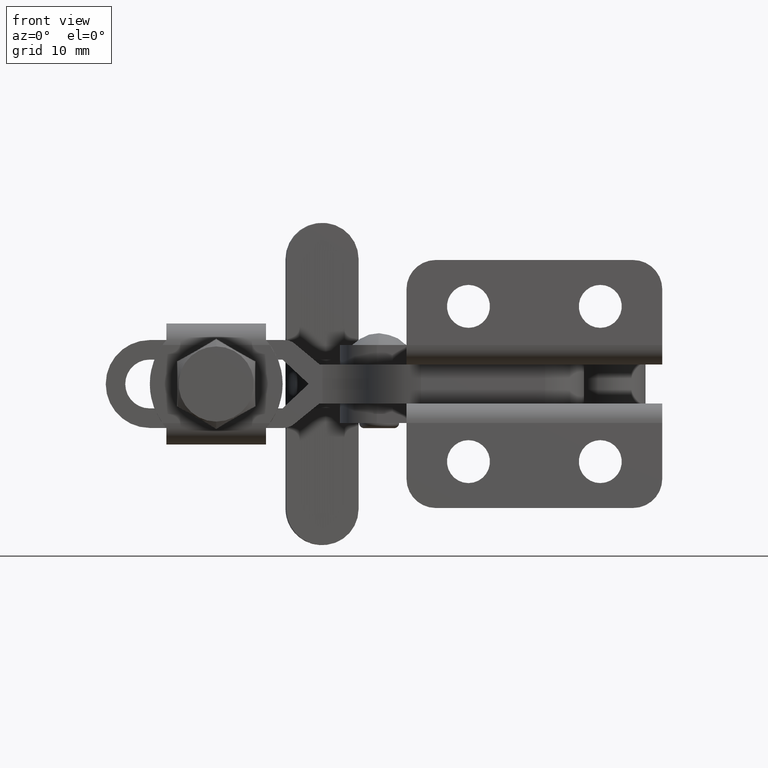
[diagram: clean part render]
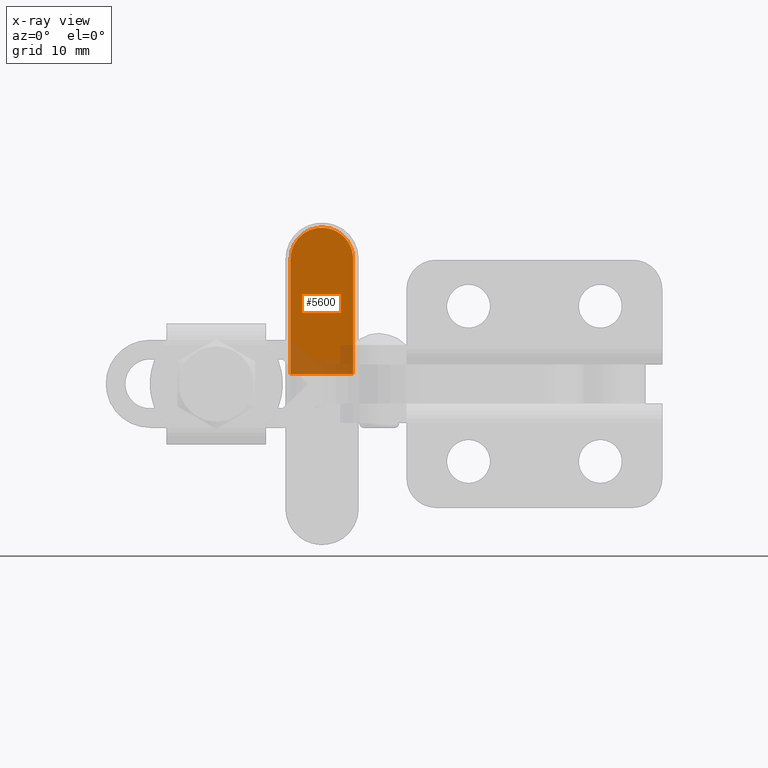
[diagram: x-ray — body ghosted, one internal face saturated and labeled with its STEP entity id]
A machine part, front view, then the same camera in x-ray: the body is ghosted and one INTERNAL B-rep face — a face not visible from any outside direction — is saturated and labeled: STEP entity #5600.
In plain terms, the highlighted planar face has unit normal (0.031, -0.9995, 0).
Its self-contained STEP definition (entity closure, byte-faithful):
#519 = VECTOR ( 'NONE', #6798, 1000.000000000000100 ) ;
#527 = ORIENTED_EDGE ( 'NONE', *, *, #2327, .T. ) ;
#900 = CARTESIAN_POINT ( 'NONE',  ( -35.07920312261271800, 39.48814670968528200, -0.9999999999999991100 ) ) ;
#1233 = VERTEX_POINT ( 'NONE', #2519 ) ;
#1251 = FACE_OUTER_BOUND ( 'NONE', #5979, .T. ) ;
#1564 = ORIENTED_EDGE ( 'NONE', *, *, #3925, .F. ) ;
#2327 = EDGE_CURVE ( 'NONE', #1233, #2427, #7389, .T. ) ;
#2426 = CARTESIAN_POINT ( 'NONE',  ( -28.66063524383564200, 39.68713200857599300, 14.00000000000000000 ) ) ;
#2427 = VERTEX_POINT ( 'NONE', #900 ) ;
#2519 = CARTESIAN_POINT ( 'NONE',  ( -35.07920312261271800, 39.48814670968528200, 10.79917443168819200 ) ) ;
#2630 =( BOUNDED_CURVE ( )  B_SPLINE_CURVE ( 3, ( #3464, #5273, #9317, #8514 ),
 .UNSPECIFIED., .F., .T. ) 
 B_SPLINE_CURVE_WITH_KNOTS ( ( 4, 4 ),
 ( 3.141592653589795300, 6.283185307179582700 ),
 .UNSPECIFIED. ) 
 CURVE ( )  GEOMETRIC_REPRESENTATION_ITEM ( )  RATIONAL_B_SPLINE_CURVE ( ( 1.000000000000000000, 0.3333333333333353100, 0.3333333333333353100, 1.000000000000000000 ) ) 
 REPRESENTATION_ITEM ( '' )  );
#2835 = AXIS2_PLACEMENT_3D ( 'NONE', #8550, #9913, #4844 ) ;
#2926 = LINE ( 'NONE', #2426, #4723 ) ;
#3314 = VECTOR ( 'NONE', #10024, 1000.000000000000000 ) ;
#3426 = EDGE_CURVE ( 'NONE', #4112, #8894, #2926, .T. ) ;
#3464 = CARTESIAN_POINT ( 'NONE',  ( -35.07920312261271800, 39.48814670968528200, 10.79917443168819200 ) ) ;
#3925 = EDGE_CURVE ( 'NONE', #1233, #4112, #2630, .T. ) ;
#4112 = VERTEX_POINT ( 'NONE', #6419 ) ;
#4723 = VECTOR ( 'NONE', #9956, 1000.000000000000000 ) ;
#4844 = DIRECTION ( 'NONE',  ( 0.9995197992869301300, 0.03098662345940447400, 0.0000000000000000000 ) ) ;
#5010 = PLANE ( 'NONE',  #2835 ) ;
#5238 = CARTESIAN_POINT ( 'NONE',  ( -35.07920312261271800, 39.48814670968528200, 0.0000000000000000000 ) ) ;
#5273 = CARTESIAN_POINT ( 'NONE',  ( -35.07920312261283200, 39.48814670968527500, 17.22082556831178100 ) ) ;
#5487 = CARTESIAN_POINT ( 'NONE',  ( -28.67062681112561500, 39.68682225489867200, -0.9999999999999991100 ) ) ;
#5600 = ADVANCED_FACE ( 'NONE', ( #1251 ), #5010, .T. ) ;
#5979 = EDGE_LOOP ( 'NONE', ( #8086, #1564, #527, #9150 ) ) ;
#6419 = CARTESIAN_POINT ( 'NONE',  ( -28.66063524383564200, 39.68713200857599300, 10.79917443168819500 ) ) ;
#6644 = EDGE_CURVE ( 'NONE', #8894, #2427, #6698, .T. ) ;
#6698 = LINE ( 'NONE', #5487, #519 ) ;
#6798 = DIRECTION ( 'NONE',  ( -0.9995197992869301300, -0.03098662345940447400, -0.0000000000000000000 ) ) ;
#7389 = LINE ( 'NONE', #5238, #3314 ) ;
#8086 = ORIENTED_EDGE ( 'NONE', *, *, #3426, .F. ) ;
#8514 = CARTESIAN_POINT ( 'NONE',  ( -28.66063524383564200, 39.68713200857599300, 10.79917443168819500 ) ) ;
#8550 = CARTESIAN_POINT ( 'NONE',  ( -28.67062681112561500, 39.68682225489867200, 14.00000000000000000 ) ) ;
#8894 = VERTEX_POINT ( 'NONE', #9527 ) ;
#9150 = ORIENTED_EDGE ( 'NONE', *, *, #6644, .F. ) ;
#9317 = CARTESIAN_POINT ( 'NONE',  ( -28.66063524383577400, 39.68713200857599300, 17.22082556831178800 ) ) ;
#9527 = CARTESIAN_POINT ( 'NONE',  ( -28.66063524383564200, 39.68713200857599300, -0.9999999999999991100 ) ) ;
#9913 = DIRECTION ( 'NONE',  ( 0.03098662345940447400, -0.9995197992869301300, 0.0000000000000000000 ) ) ;
#9956 = DIRECTION ( 'NONE',  ( 0.0000000000000000000, 0.0000000000000000000, -1.000000000000000000 ) ) ;
#10024 = DIRECTION ( 'NONE',  ( 0.0000000000000000000, 0.0000000000000000000, -1.000000000000000000 ) ) ;